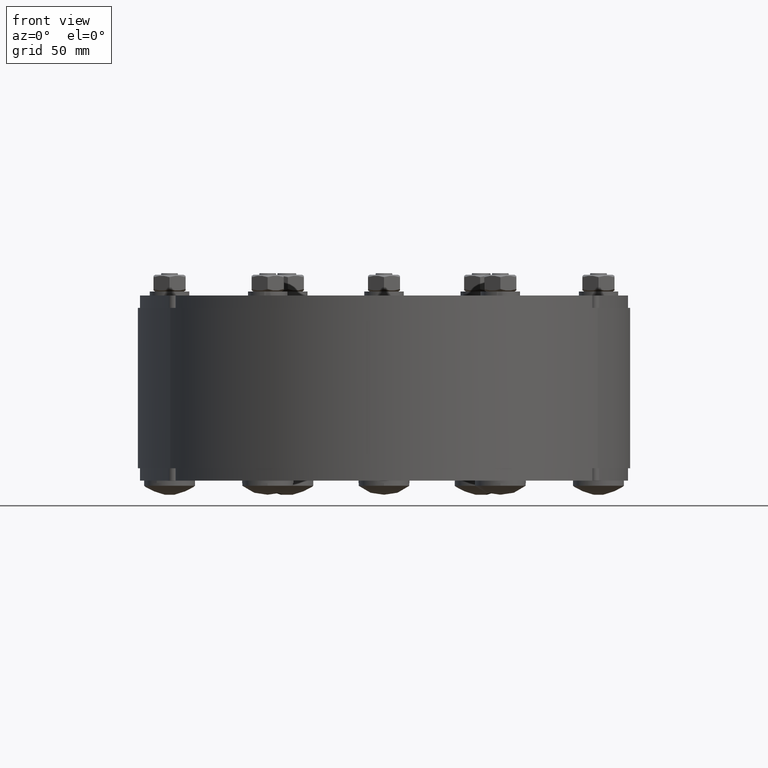
[diagram: clean part render]
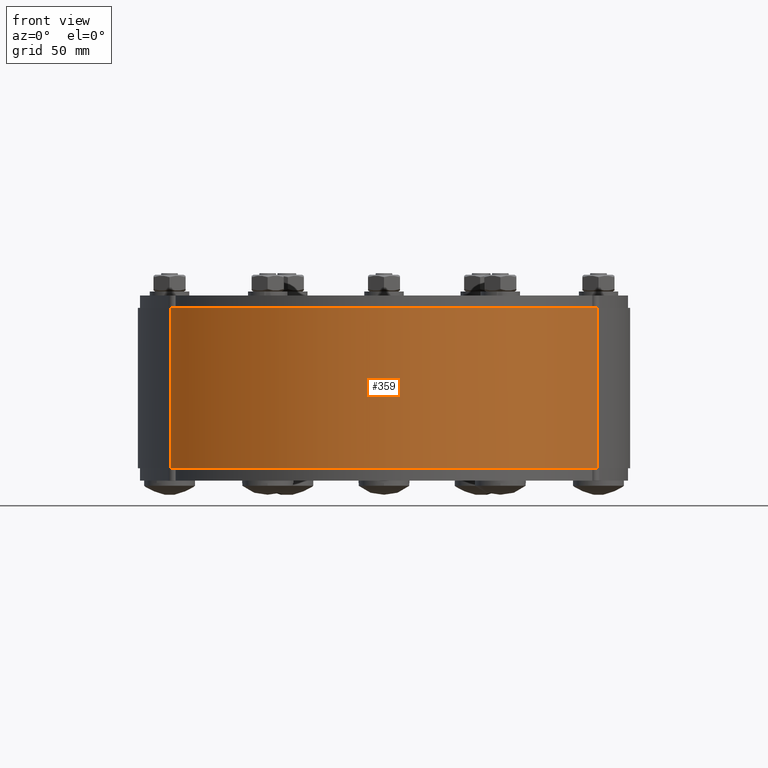
[diagram: same view with one face highlighted and labeled with its STEP entity id]
A machine part, front view. The second image highlights one B-rep face of the part: STEP entity #359.
In plain terms, the highlighted cylindrical surface (partial cylindrical patch) has radius 100 mm, axis along (0, 0, 1).
Its self-contained STEP definition (entity closure, byte-faithful):
#240=CARTESIAN_POINT('',(-86.602540378444019,-50.000000000000128,-32.5));
#241=VERTEX_POINT('',#240);
#248=CARTESIAN_POINT('',(-86.602540378444019,-50.000000000000128,32.5));
#249=VERTEX_POINT('',#248);
#250=CARTESIAN_POINT('',(-86.602540378444019,-50.000000000000135,32.5));
#251=DIRECTION('',(0.0,0.0,-1.0));
#252=VECTOR('',#251,65.0);
#253=LINE('',#250,#252);
#254=EDGE_CURVE('',#249,#241,#253,.T.);
#270=CARTESIAN_POINT('',(86.602540378443507,-49.999999999999744,-32.5));
#271=VERTEX_POINT('',#270);
#272=CARTESIAN_POINT('',(86.602540378443507,-49.999999999999758,32.5));
#273=VERTEX_POINT('',#272);
#274=CARTESIAN_POINT('',(86.602540378443507,-49.999999999999751,-32.5));
#275=DIRECTION('',(0.0,0.0,1.0));
#276=VECTOR('',#275,65.0);
#277=LINE('',#274,#276);
#278=EDGE_CURVE('',#271,#273,#277,.T.);
#336=CARTESIAN_POINT('',(-3.685940E-013,2.309264E-013,0.0));
#337=DIRECTION('',(0.0,0.0,1.0));
#338=DIRECTION('',(-0.866025403784437,-0.500000000000003,0.0));
#339=AXIS2_PLACEMENT_3D('',#336,#337,#338);
#340=CYLINDRICAL_SURFACE('',#339,100.00000000000001);
#341=ORIENTED_EDGE('',*,*,#278,.T.);
#342=CARTESIAN_POINT('',(-3.730349E-013,2.309264E-013,32.5));
#343=DIRECTION('',(0.0,0.0,1.0));
#344=DIRECTION('',(-0.867521506661351,-0.497399673783588,0.0));
#345=AXIS2_PLACEMENT_3D('',#342,#343,#344);
#346=CIRCLE('',#345,99.999999999999986);
#347=EDGE_CURVE('',#249,#273,#346,.T.);
#348=ORIENTED_EDGE('',*,*,#347,.F.);
#349=ORIENTED_EDGE('',*,*,#254,.T.);
#350=CARTESIAN_POINT('',(-3.730349E-013,2.309264E-013,-32.5));
#351=DIRECTION('',(0.0,0.0,-1.0));
#352=DIRECTION('',(0.866025403784439,-0.5,0.0));
#353=AXIS2_PLACEMENT_3D('',#350,#351,#352);
#354=CIRCLE('',#353,99.999999999999972);
#355=EDGE_CURVE('',#271,#241,#354,.T.);
#356=ORIENTED_EDGE('',*,*,#355,.F.);
#357=EDGE_LOOP('',(#341,#348,#349,#356));
#358=FACE_OUTER_BOUND('',#357,.T.);
#359=ADVANCED_FACE('',(#358),#340,.T.);